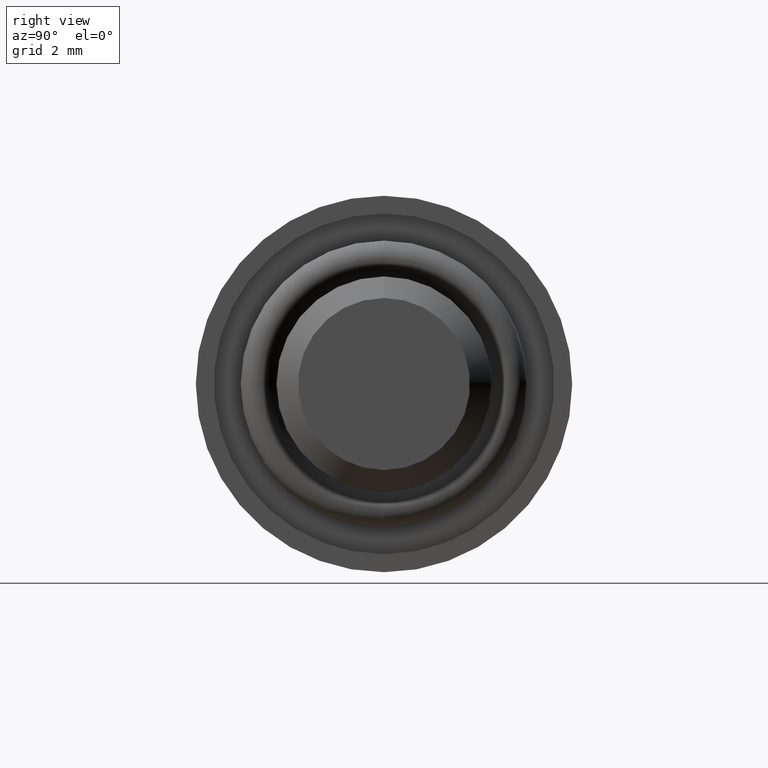
[diagram: clean part render]
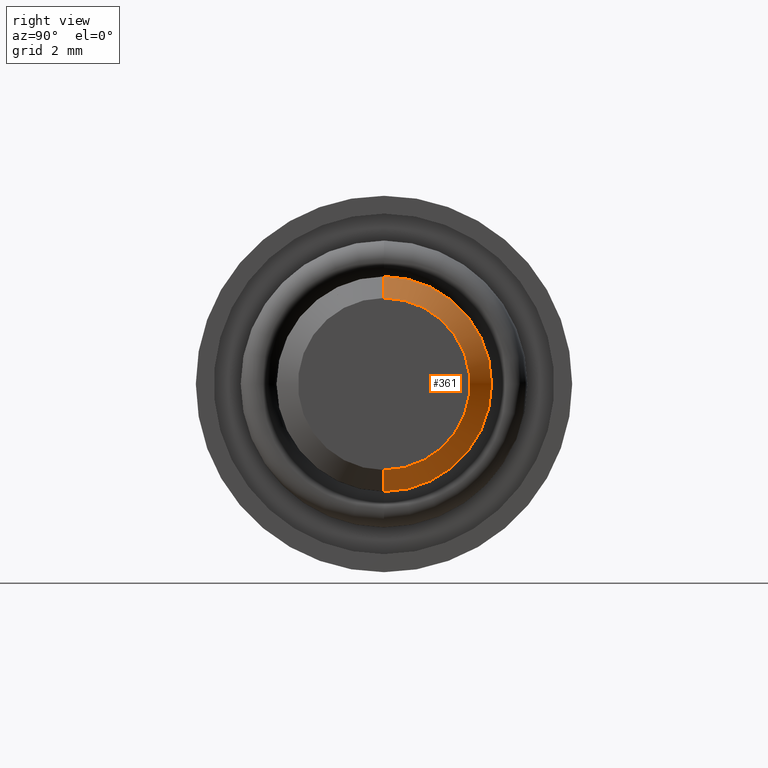
[diagram: same view with one face highlighted and labeled with its STEP entity id]
A machine part, right view. The second image highlights one B-rep face of the part: STEP entity #361.
In plain terms, the highlighted conical surface has half-angle 45 deg.
Its self-contained STEP definition (entity closure, byte-faithful):
#59 = CIRCLE ( 'NONE', #188, 2.400000000000003000 ) ;
#63 = VERTEX_POINT ( 'NONE', #1198 ) ;
#128 = DIRECTION ( 'NONE',  ( 1.000000000000000000, 0.0000000000000000000, 0.0000000000000000000 ) ) ;
#184 = CARTESIAN_POINT ( 'NONE',  ( 10.00000000000000000, 2.939152317953650600E-016, -2.400000000000003000 ) ) ;
#187 = CARTESIAN_POINT ( 'NONE',  ( 9.399999999999998600, 0.0000000000000000000, 3.000000000000000400 ) ) ;
#188 = AXIS2_PLACEMENT_3D ( 'NONE', #857, #128, #762 ) ;
#189 = DIRECTION ( 'NONE',  ( 0.0000000000000000000, 0.0000000000000000000, 1.000000000000000000 ) ) ;
#361 = ADVANCED_FACE ( 'NONE', ( #1031 ), #1228, .T. ) ;
#384 = CIRCLE ( 'NONE', #732, 3.000000000000000400 ) ;
#414 = ORIENTED_EDGE ( 'NONE', *, *, #604, .F. ) ;
#447 = EDGE_CURVE ( 'NONE', #832, #936, #384, .T. ) ;
#513 = VECTOR ( 'NONE', #621, 1000.000000000000000 ) ;
#550 = EDGE_LOOP ( 'NONE', ( #727, #1188, #935, #414 ) ) ;
#576 = CARTESIAN_POINT ( 'NONE',  ( 10.00000000000000000, 0.0000000000000000000, 2.400000000000003000 ) ) ;
#604 = EDGE_CURVE ( 'NONE', #1043, #832, #840, .T. ) ;
#621 = DIRECTION ( 'NONE',  ( -0.7071067811865497900, 0.0000000000000000000, 0.7071067811865452400 ) ) ;
#626 = DIRECTION ( 'NONE',  ( -0.7071067811865497900, 8.659560562354903300E-017, -0.7071067811865452400 ) ) ;
#718 = DIRECTION ( 'NONE',  ( 0.0000000000000000000, 0.0000000000000000000, -1.000000000000000000 ) ) ;
#727 = ORIENTED_EDGE ( 'NONE', *, *, #988, .F. ) ;
#732 = AXIS2_PLACEMENT_3D ( 'NONE', #900, #1193, #718 ) ;
#762 = DIRECTION ( 'NONE',  ( 0.0000000000000000000, 0.0000000000000000000, -1.000000000000000000 ) ) ;
#774 = CARTESIAN_POINT ( 'NONE',  ( 9.399999999999998600, 3.673940397442060400E-016, -3.000000000000000400 ) ) ;
#824 = AXIS2_PLACEMENT_3D ( 'NONE', #1223, #924, #189 ) ;
#828 = LINE ( 'NONE', #184, #931 ) ;
#832 = VERTEX_POINT ( 'NONE', #187 ) ;
#840 = LINE ( 'NONE', #576, #513 ) ;
#857 = CARTESIAN_POINT ( 'NONE',  ( 10.00000000000000000, 0.0000000000000000000, 0.0000000000000000000 ) ) ;
#900 = CARTESIAN_POINT ( 'NONE',  ( 9.399999999999998600, 0.0000000000000000000, 0.0000000000000000000 ) ) ;
#924 = DIRECTION ( 'NONE',  ( -1.000000000000000000, 0.0000000000000000000, 0.0000000000000000000 ) ) ;
#931 = VECTOR ( 'NONE', #626, 1000.000000000000000 ) ;
#935 = ORIENTED_EDGE ( 'NONE', *, *, #447, .F. ) ;
#936 = VERTEX_POINT ( 'NONE', #774 ) ;
#988 = EDGE_CURVE ( 'NONE', #63, #1043, #59, .T. ) ;
#1031 = FACE_OUTER_BOUND ( 'NONE', #550, .T. ) ;
#1043 = VERTEX_POINT ( 'NONE', #1206 ) ;
#1136 = EDGE_CURVE ( 'NONE', #63, #936, #828, .T. ) ;
#1188 = ORIENTED_EDGE ( 'NONE', *, *, #1136, .T. ) ;
#1193 = DIRECTION ( 'NONE',  ( -1.000000000000000000, 0.0000000000000000000, 0.0000000000000000000 ) ) ;
#1198 = CARTESIAN_POINT ( 'NONE',  ( 10.00000000000000000, 3.306546357697855200E-016, -2.400000000000003000 ) ) ;
#1206 = CARTESIAN_POINT ( 'NONE',  ( 10.00000000000000000, 0.0000000000000000000, 2.400000000000003000 ) ) ;
#1223 = CARTESIAN_POINT ( 'NONE',  ( 10.00000000000000000, 0.0000000000000000000, 0.0000000000000000000 ) ) ;
#1228 = CONICAL_SURFACE ( 'NONE', #824, 2.400000000000003000, 0.7853981633974450600 ) ;